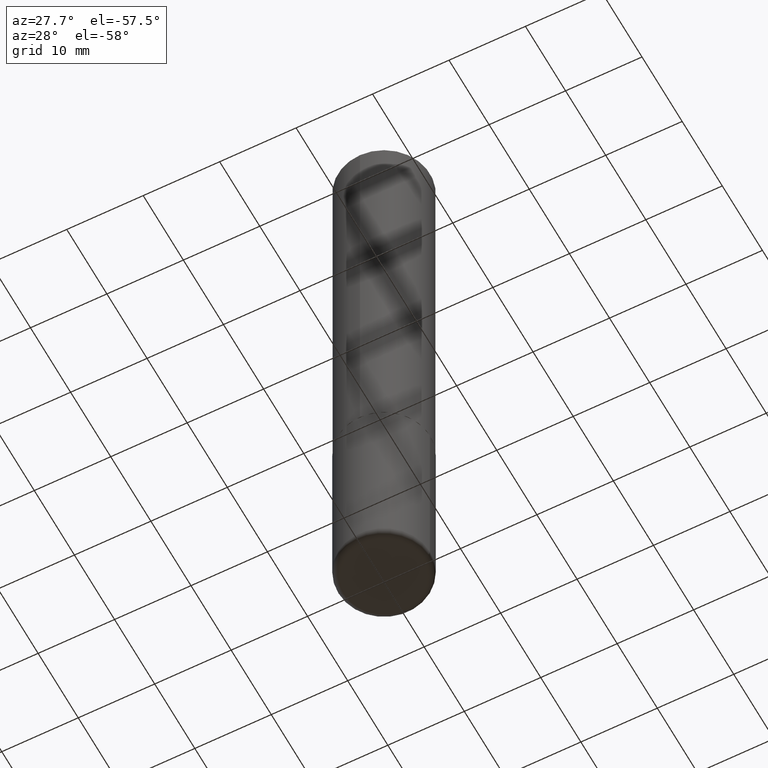
[diagram: clean part render]
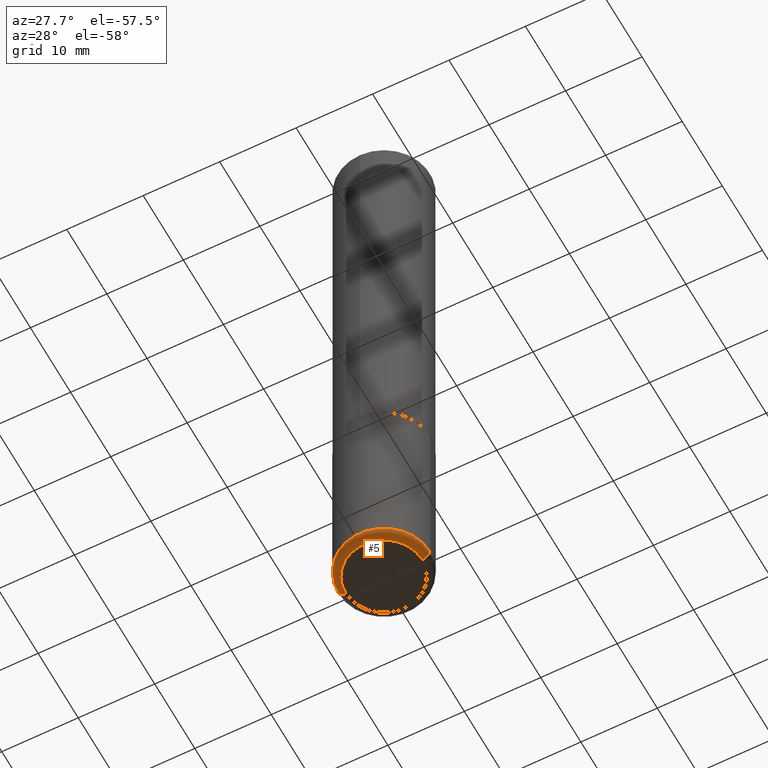
[diagram: same view with one face highlighted and labeled with its STEP entity id]
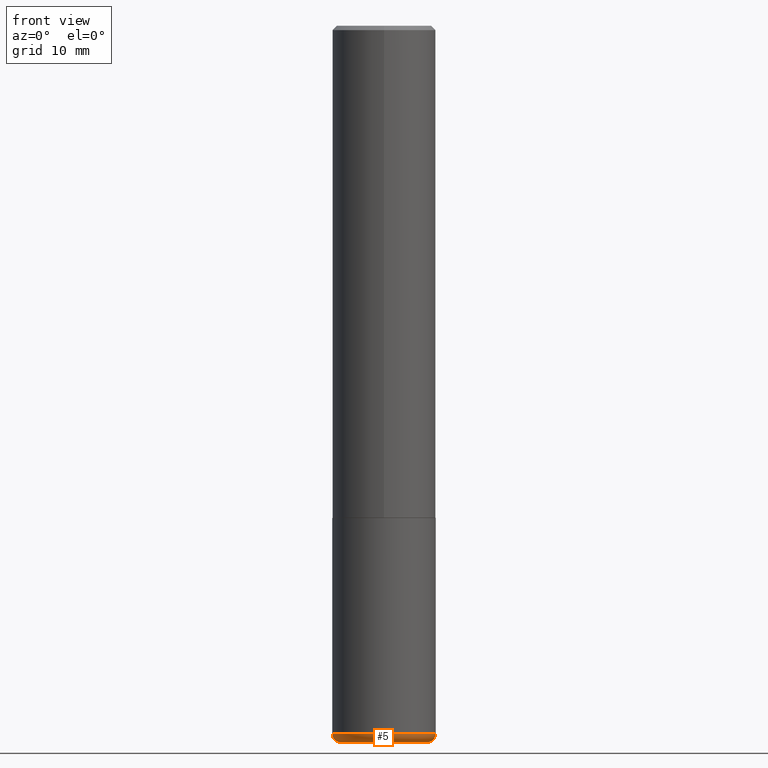
[diagram: same view with one face highlighted and labeled with its STEP entity id]
A machine part, auxiliary view. The second image highlights one B-rep face of the part: STEP entity #5.
A second angle (front view) of the same face is appended — the face is thin or edge-on in the first view.
In plain terms, the highlighted toroidal blend (fillet) surface has major radius 4.9987 mm and minor (blend) radius 1.0008 mm.
Its self-contained STEP definition (entity closure, byte-faithful):
#5 = ADVANCED_FACE ( 'NONE', ( #347 ), #193, .T. ) ;
#7 = VERTEX_POINT ( 'NONE', #119 ) ;
#30 = DIRECTION ( 'NONE',  ( 1.000000000000000000, -6.982962677686265922E-15, 0.000000000000000000 ) ) ;
#45 = ORIENTED_EDGE ( 'NONE', *, *, #407, .T. ) ;
#50 = DIRECTION ( 'NONE',  ( 7.105427357601001859E-15, 1.000000000000000000, -3.491481338843145583E-15 ) ) ;
#52 = AXIS2_PLACEMENT_3D ( 'NONE', #194, #316, #30 ) ;
#55 = ORIENTED_EDGE ( 'NONE', *, *, #94, .F. ) ;
#84 = AXIS2_PLACEMENT_3D ( 'NONE', #167, #393, #104 ) ;
#91 = CARTESIAN_POINT ( 'NONE',  ( 7.894706947007477118E-29, -1.127154920618732880E-14, -3.228299999999999947 ) ) ;
#94 = EDGE_CURVE ( 'NONE', #231, #257, #324, .T. ) ;
#104 = DIRECTION ( 'NONE',  ( 1.000000000000000000, -6.982962677686261977E-15, 0.000000000000000000 ) ) ;
#107 = CARTESIAN_POINT ( 'NONE',  ( 0.1968000000000000027, -1.264579626115598374E-14, -3.228299999999999947 ) ) ;
#109 = CIRCLE ( 'NONE', #125, 0.03940000000000033753 ) ;
#119 = CARTESIAN_POINT ( 'NONE',  ( 0.1968000000000000027, -1.278336062590640454E-14, -3.267700000000000937 ) ) ;
#123 = CARTESIAN_POINT ( 'NONE',  ( -0.2362000000000001321, -9.593247264321970832E-15, -3.228299999999999947 ) ) ;
#125 = AXIS2_PLACEMENT_3D ( 'NONE', #107, #134, #290 ) ;
#134 = DIRECTION ( 'NONE',  ( -6.982962677686266711E-15, -1.000000000000000000, 3.491481338843145583E-15 ) ) ;
#136 = VERTEX_POINT ( 'NONE', #320 ) ;
#167 = CARTESIAN_POINT ( 'NONE',  ( 7.991058417971172834E-29, -1.140911357093774960E-14, -3.267700000000000937 ) ) ;
#175 = DIRECTION ( 'NONE',  ( -1.000000000000000000, 7.105427357601014480E-15, 0.000000000000000000 ) ) ;
#181 = EDGE_LOOP ( 'NONE', ( #55, #369, #45, #321 ) ) ;
#193 = TOROIDAL_SURFACE ( 'NONE', #350, 0.1968000000000000027, 0.03940000000000031671 ) ;
#194 = CARTESIAN_POINT ( 'NONE',  ( 7.894706947007477118E-29, -1.127154920618732880E-14, -3.228299999999999947 ) ) ;
#224 = AXIS2_PLACEMENT_3D ( 'NONE', #274, #50, #175 ) ;
#226 = CARTESIAN_POINT ( 'NONE',  ( -0.1968000000000000027, -9.802006365641918959E-15, -3.267700000000000937 ) ) ;
#229 = CIRCLE ( 'NONE', #52, 0.2361999999999999655 ) ;
#231 = VERTEX_POINT ( 'NONE', #226 ) ;
#252 = EDGE_CURVE ( 'NONE', #257, #136, #229, .T. ) ;
#257 = VERTEX_POINT ( 'NONE', #123 ) ;
#274 = CARTESIAN_POINT ( 'NONE',  ( -0.1968000000000000027, -9.873201102211451027E-15, -3.228299999999999947 ) ) ;
#281 = CIRCLE ( 'NONE', #84, 0.1968000000000000027 ) ;
#286 = EDGE_CURVE ( 'NONE', #231, #7, #281, .T. ) ;
#290 = DIRECTION ( 'NONE',  ( 1.000000000000000000, -6.982962677686268288E-15, 0.000000000000000000 ) ) ;
#316 = DIRECTION ( 'NONE',  ( -2.445468806185136597E-29, 3.491481338843145583E-15, 1.000000000000000000 ) ) ;
#320 = CARTESIAN_POINT ( 'NONE',  ( 0.2362000000000001321, -1.292092499065682533E-14, -3.228299999999999947 ) ) ;
#321 = ORIENTED_EDGE ( 'NONE', *, *, #252, .F. ) ;
#324 = CIRCLE ( 'NONE', #224, 0.03940000000000033753 ) ;
#347 = FACE_OUTER_BOUND ( 'NONE', #181, .T. ) ;
#350 = AXIS2_PLACEMENT_3D ( 'NONE', #91, #379, #402 ) ;
#369 = ORIENTED_EDGE ( 'NONE', *, *, #286, .T. ) ;
#379 = DIRECTION ( 'NONE',  ( -2.445468806185136597E-29, 3.491481338843145583E-15, 1.000000000000000000 ) ) ;
#393 = DIRECTION ( 'NONE',  ( -2.445468806185136597E-29, 3.491481338843145583E-15, 1.000000000000000000 ) ) ;
#402 = DIRECTION ( 'NONE',  ( 1.000000000000000000, -6.982962677686262766E-15, 4.883557194083112340E-29 ) ) ;
#407 = EDGE_CURVE ( 'NONE', #7, #136, #109, .T. ) ;